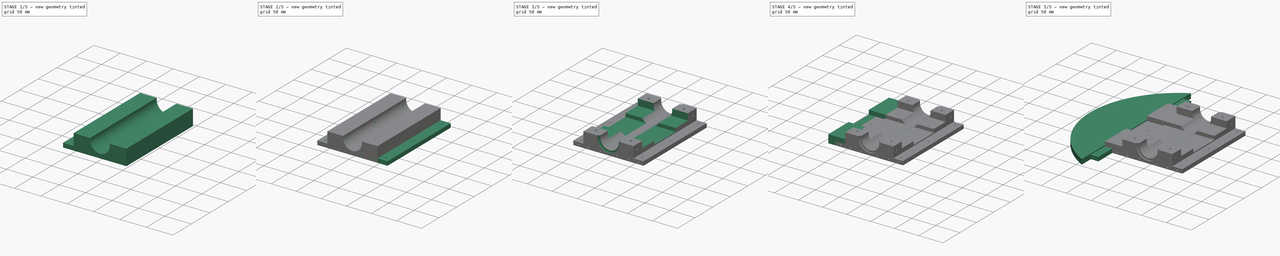
[diagram: build sequence overview — one tinted view per stage of 5, left to right]
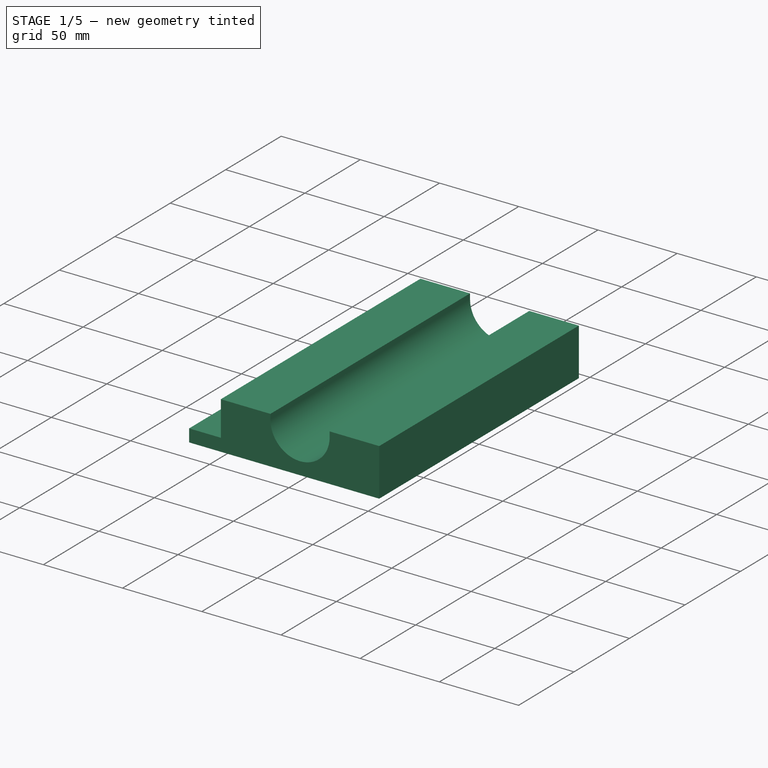
[diagram: stage 1 of 5 — iso view after this stage's code; geometry added in this stage tinted green]
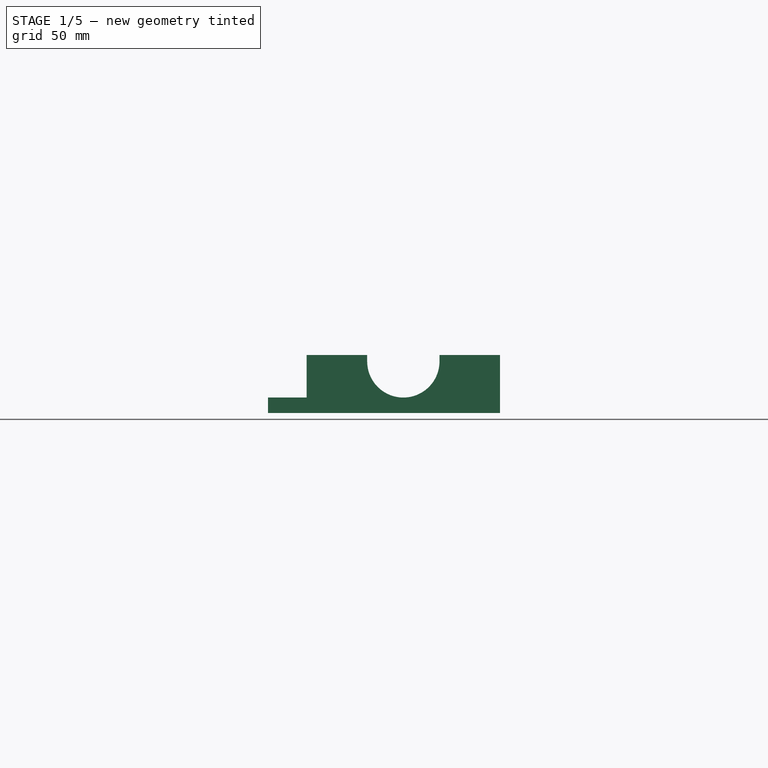
[diagram: stage 1 of 5 — front view after this stage's code; geometry added in this stage tinted green]
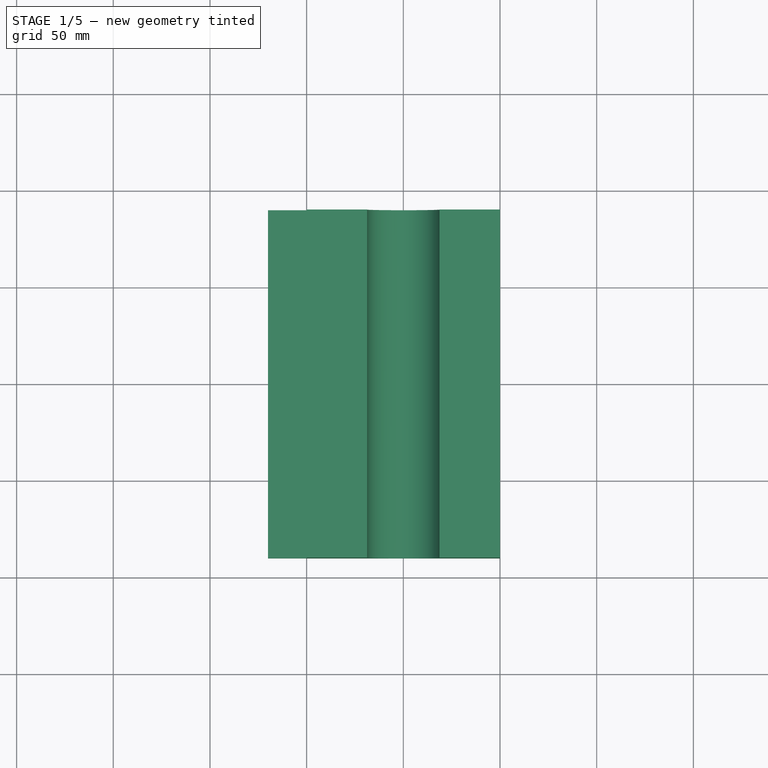
[diagram: stage 1 of 5 — top view after this stage's code; geometry added in this stage tinted green]
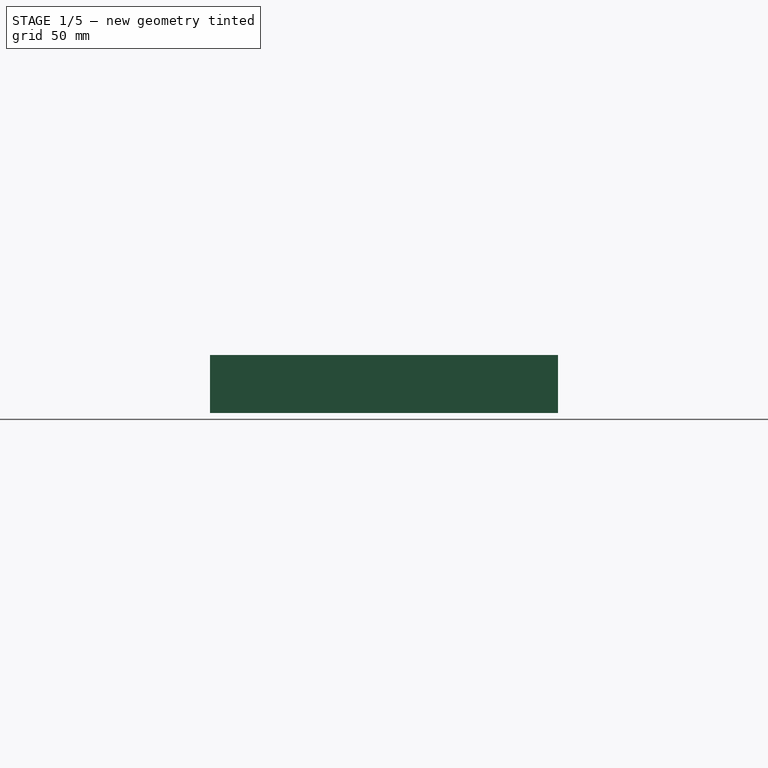
[diagram: stage 1 of 5 — right view after this stage's code; geometry added in this stage tinted green]
FCSTD DOCUMENT  (FreeCAD 0.16R)
Label: bumper
License: All rights reserved
LicenseURL: http://en.wikipedia.org/wiki/All_rights_reserved
objects: Sketcher::SketchObject×21, PartDesign::Pocket×11, PartDesign::Pad×10
note: 63 computed .brp shape members not serialized (recipe doc carries the construction recipe); baked Part::Feature solids carry a one-line shape summary decoded from their .brp

FEATURE [Sketcher::SketchObject] Sketch
  sketch-geometry (4):
    g0: LineSegment StartX=-50 StartY=90 StartZ=0 EndX=50 EndY=90 EndZ=0
    g1: LineSegment StartX=50 StartY=90 StartZ=0 EndX=50 EndY=-90 EndZ=0
    g2: LineSegment StartX=50 StartY=-90 StartZ=0 EndX=-50 EndY=-90 EndZ=0
    g3: LineSegment StartX=-50 StartY=-90 StartZ=0 EndX=-50 EndY=90 EndZ=0
  constraints (12):
    c: Coincident(g0,g1)
    c: Coincident(g1,g2)
    c: Coincident(g2,g3)
    c: Coincident(g3,g0)
    c: Horizontal(g0)
    c: Horizontal(g2)
    c: Vertical(g1)
    c: Vertical(g3)
    c: Symmetric(g0,g0,g-2)
    c: Symmetric(g0,g2,g-1)
    c: DistanceX(g0,g0) = 100
    c: DistanceY(g1,g1) = 180
FEATURE [PartDesign::Pad] Pad
  Length = 30
  Length2 = 100
  Sketch = -> Sketch
  Type = 0
FEATURE [Sketcher::SketchObject] Sketch001
  ExternalGeometry = -> [Pad]
  Placement = pos=(0,-90,0) rot=(1,0,0;1.5708rad)
  Support = -> Pad [Face3]
  sketch-geometry (3):
    g0: Circle CenterX=0 CenterY=26.7 CenterZ=0 NormalX=0 NormalY=0 NormalZ=1 Radius=18.7
    g1: GeomPoint [constr] X=0.043932 Y=30 Z=0
    g2: GeomPoint [constr] X=0 Y=8 Z=0
  constraints (6):
    c: PointOnObject(g0,g-2)
    c: Radius(g0) = 18.7
    c: PointOnObject(g1,g-3)
    c: PointOnObject(g2,g-2)
    c: PointOnObject(g2,g0)
    c: DistanceY(g2,g1) = 22
FEATURE [PartDesign::Pocket] Pocket
  Length = 5
  Sketch = -> Sketch001
  Type = 1
FEATURE [Sketcher::SketchObject] Sketch002
  ExternalGeometry = -> [Pocket]
  Placement = pos=(0,-90,0) rot=(1,0,0;1.5708rad)
  Support = -> Pocket [Face9]
  sketch-geometry (4):
    g0: LineSegment StartX=18.7 StartY=30 StartZ=0 EndX=-18.7 EndY=30 EndZ=0
    g1: LineSegment StartX=-18.7 StartY=30 StartZ=0 EndX=-18.7 EndY=26.4651 EndZ=0
    g2: LineSegment StartX=-18.7 StartY=26.4651 StartZ=0 EndX=18.7 EndY=26.4651 EndZ=0
    g3: LineSegment StartX=18.7 StartY=26.4651 StartZ=0 EndX=18.7 EndY=30 EndZ=0
  constraints (11):
    c: Coincident(g0,g1)
    c: Coincident(g1,g2)
    c: Coincident(g2,g3)
    c: Coincident(g3,g0)
    c: Horizontal(g0)
    c: Horizontal(g2)
    c: Vertical(g1)
    c: Vertical(g3)
    c: PointOnObject(g0,g-4)
    c: PointOnObject(g-6,g3)
    c: Symmetric(g0,g0,g-2)
FEATURE [PartDesign::Pocket] Pocket001
  Length = 5
  Sketch = -> Sketch002
  Type = 1
FEATURE [Sketcher::SketchObject] Sketch003
  ExternalGeometry = -> [Pocket001]
  Placement = pos=(-50,0,0) rot=(0.57735,-0.57735,-0.57735;2.0944rad)
  Support = -> Pocket001 [Face13]
  sketch-geometry (4):
    g0: LineSegment StartX=-90 StartY=8 StartZ=0 EndX=90 EndY=8 EndZ=0
    g1: LineSegment StartX=90 StartY=8 StartZ=0 EndX=90 EndY=0 EndZ=0
    g2: LineSegment StartX=90 StartY=0 StartZ=0 EndX=-90 EndY=0 EndZ=0
    g3: LineSegment StartX=-90 StartY=0 StartZ=0 EndX=-90 EndY=8 EndZ=0
  constraints (11):
    c: Coincident(g0,g1)
    c: Coincident(g1,g2)
    c: Coincident(g2,g3)
    c: Coincident(g3,g0)
    c: Horizontal(g0)
    c: Horizontal(g2)
    c: Vertical(g1)
    c: Vertical(g3)
    c: PointOnObject(g0,g-5)
    c: Coincident(g1,g-4)
    c: DistanceY(g2,g0) = 8
FEATURE [PartDesign::Pad] Pad001
  Length = 20
  Length2 = 100
  Sketch = -> Sketch003
  Type = 0
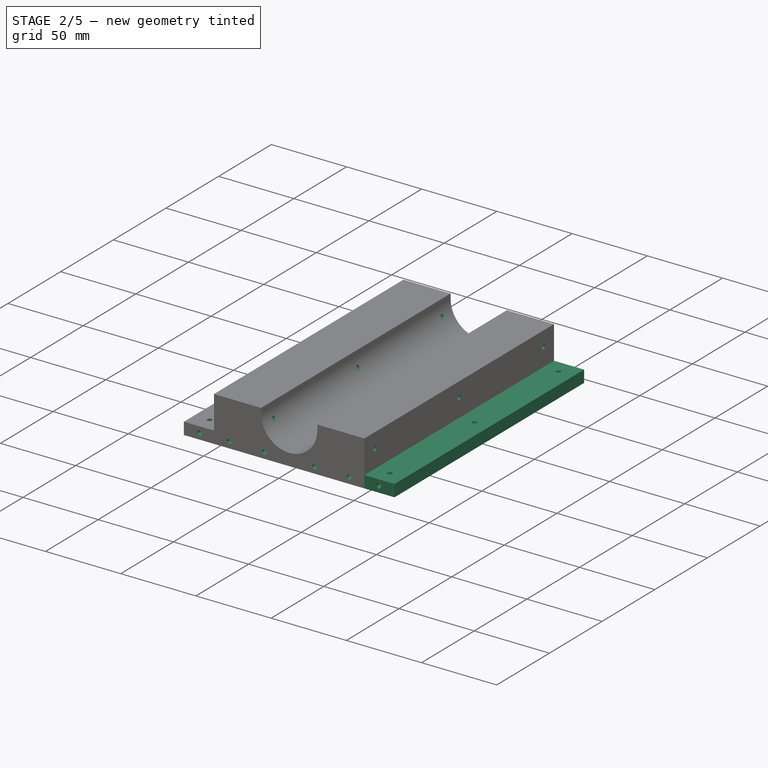
[diagram: stage 2 of 5 — iso view after this stage's code; geometry added in this stage tinted green]
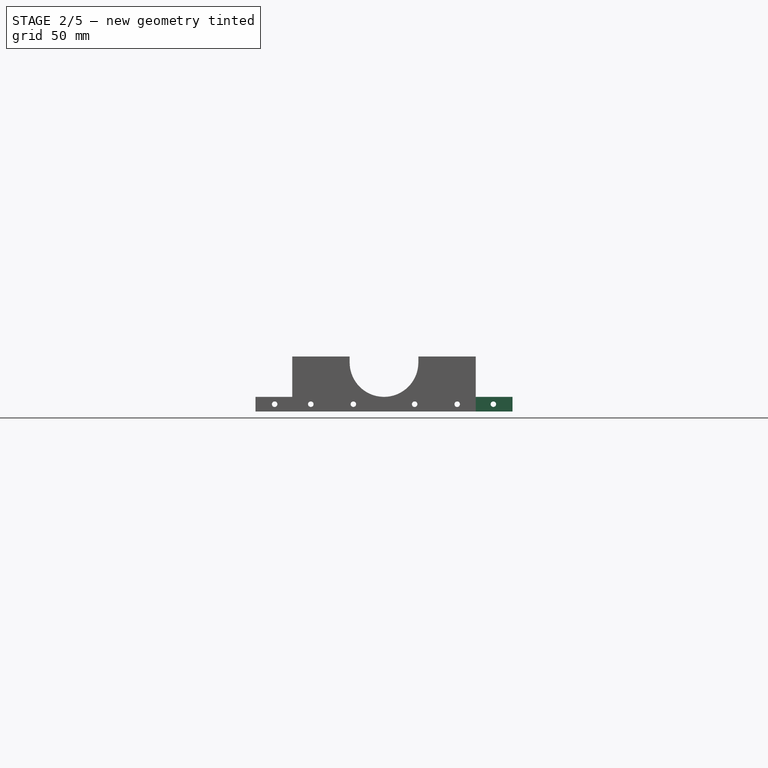
[diagram: stage 2 of 5 — front view after this stage's code; geometry added in this stage tinted green]
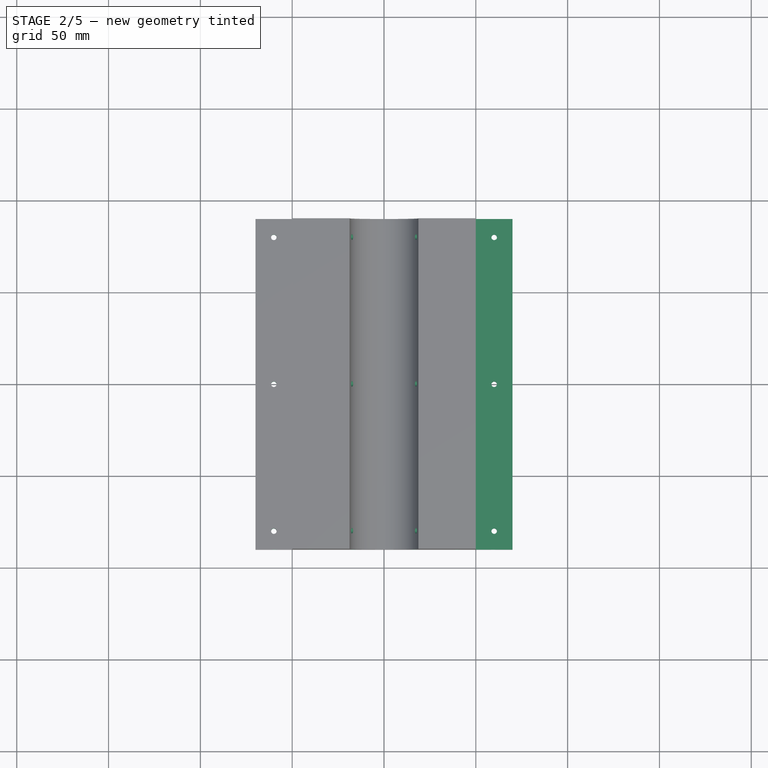
[diagram: stage 2 of 5 — top view after this stage's code; geometry added in this stage tinted green]
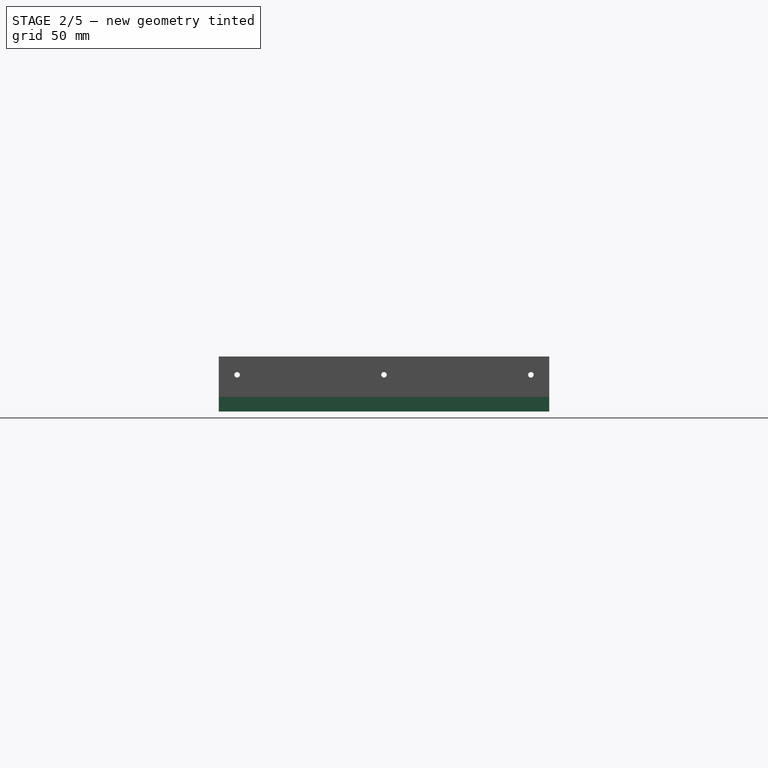
[diagram: stage 2 of 5 — right view after this stage's code; geometry added in this stage tinted green]
FEATURE [Sketcher::SketchObject] Sketch004
  ExternalGeometry = -> [Pad001]
  Placement = pos=(50,0,0) rot=(0.57735,0.57735,0.57735;2.0944rad)
  Support = -> Pad001 [Face1]
  sketch-geometry (4):
    g0: LineSegment StartX=-90 StartY=8 StartZ=0 EndX=90 EndY=8 EndZ=0
    g1: LineSegment StartX=90 StartY=8 StartZ=0 EndX=90 EndY=0 EndZ=0
    g2: LineSegment StartX=90 StartY=0 StartZ=0 EndX=-90 EndY=0 EndZ=0
    g3: LineSegment StartX=-90 StartY=0 StartZ=0 EndX=-90 EndY=8 EndZ=0
  constraints (11):
    c: Coincident(g0,g1)
    c: Coincident(g1,g2)
    c: Coincident(g2,g3)
    c: Coincident(g3,g0)
    c: Horizontal(g0)
    c: Horizontal(g2)
    c: Vertical(g1)
    c: Vertical(g3)
    c: PointOnObject(g0,g-3)
    c: Coincident(g1,g-5)
    c: DistanceY(g1,g0) = 8
FEATURE [PartDesign::Pad] Pad002
  Length = 20
  Length2 = 100
  Sketch = -> Sketch004
  Type = 0
FEATURE [Sketcher::SketchObject] Sketch005
  ExternalGeometry = -> [Pad002]
  Placement = pos=(0,0,8) rot=(0,0,1;0rad)
  Support = -> Pad002 [Face17]
  sketch-geometry (6):
    g0: Circle CenterX=-60 CenterY=80 CenterZ=0 NormalX=0 NormalY=0 NormalZ=1 Radius=1.5
    g1: Circle CenterX=60 CenterY=80 CenterZ=0 NormalX=0 NormalY=0 NormalZ=1 Radius=1.5
    g2: Circle CenterX=-60 CenterY=-80 CenterZ=0 NormalX=0 NormalY=0 NormalZ=1 Radius=1.5
    g3: Circle CenterX=60 CenterY=-80 CenterZ=0 NormalX=0 NormalY=0 NormalZ=1 Radius=1.5
    g4: Circle CenterX=60 CenterY=0 CenterZ=0 NormalX=0 NormalY=0 NormalZ=1 Radius=1.5
    g5: Circle CenterX=-60 CenterY=0 CenterZ=0 NormalX=0 NormalY=0 NormalZ=1 Radius=1.5
  constraints (18):
    c: PointOnObject(g4,g-1)
    c: PointOnObject(g5,g-1)
    c: Radius(g5) = 1.5
    c: Equal(g5,g0)
    c: Equal(g5,g1)
    c: Equal(g5,g4)
    c: Equal(g5,g3)
    c: Equal(g5,g2)
    c: DistanceX(g-6,g5) = 10
    c: DistanceX(g-7,g2) = 10
    c: DistanceX(g3,g-8) = 10
    c: DistanceX(g4,g-8) = 10
    c: DistanceX(g1,g-5) = 10
    c: DistanceX(g-6,g0) = 10
    c: DistanceY(g0,g-6) = 10
    c: DistanceY(g1,g-5) = 10
    c: DistanceY(g-8,g3) = 10
    c: DistanceY(g-7,g2) = 10
FEATURE [PartDesign::Pocket] Pocket002
  Length = 5
  Sketch = -> Sketch005
  Type = 1
FEATURE [Sketcher::SketchObject] Sketch006
  ExternalGeometry = -> [Pocket002]
  Placement = pos=(50,0,0) rot=(0.57735,0.57735,0.57735;2.0944rad)
  Support = -> Pocket002 [Face4]
  sketch-geometry (3):
    g0: Circle CenterX=-80 CenterY=20 CenterZ=0 NormalX=0 NormalY=0 NormalZ=1 Radius=1.5
    g1: Circle CenterX=0 CenterY=20 CenterZ=0 NormalX=0 NormalY=0 NormalZ=1 Radius=1.5
    g2: Circle CenterX=80 CenterY=20 CenterZ=0 NormalX=0 NormalY=0 NormalZ=1 Radius=1.5
  constraints (9):
    c: PointOnObject(g1,g-2)
    c: DistanceX(g2,g-6) = 10
    c: DistanceY(g2,g-6) = 10
    c: DistanceY(g1,g-6) = 10
    c: DistanceY(g0,g-4) = 10
    c: DistanceX(g-4,g0) = 10
    c: Radius(g0) = 1.5
    c: Radius(g1) = 1.5
    c: Radius(g2) = 1.5
FEATURE [PartDesign::Pocket] Pocket003
  Length = 5
  Sketch = -> Sketch006
  Type = 1
FEATURE [Sketcher::SketchObject] Sketch007
  Placement = pos=(0,90,0) rot=(0,0.707107,0.707107;3.14159rad)
  Support = -> Pocket003 [Face5]
  sketch-geometry (6):
    g0: Circle CenterX=-39.8613 CenterY=4 CenterZ=0 NormalX=0 NormalY=0 NormalZ=1 Radius=1.5
    g1: Circle CenterX=-16.6963 CenterY=4 CenterZ=0 NormalX=0 NormalY=0 NormalZ=1 Radius=1.5
    g2: Circle CenterX=16.6963 CenterY=4 CenterZ=0 NormalX=0 NormalY=0 NormalZ=1 Radius=1.5
    g3: Circle CenterX=39.8613 CenterY=4 CenterZ=0 NormalX=0 NormalY=0 NormalZ=1 Radius=1.5
    g4: Circle CenterX=59.5532 CenterY=4 CenterZ=0 NormalX=0 NormalY=0 NormalZ=1 Radius=1.5
    g5: Circle CenterX=-59.5532 CenterY=4 CenterZ=0 NormalX=0 NormalY=0 NormalZ=1 Radius=1.5
  constraints (15):
    c: DistanceY(g-1,g1) = 4
    c: DistanceY(g-1,g0) = 4
    c: DistanceY(g-1,g5) = 4
    c: DistanceY(g-1,g2) = 4
    c: DistanceY(g-1,g3) = 4
    c: DistanceY(g-1,g4) = 4
    c: Radius(g1) = 1.5
    c: Equal(g1,g0)
    c: Equal(g1,g5)
    c: Equal(g1,g2)
    c: Equal(g1,g3)
    c: Equal(g1,g4)
    c: Symmetric(g1,g2,g-2)
    c: Symmetric(g0,g3,g-2)
    c: Symmetric(g5,g4,g-2)
FEATURE [PartDesign::Pocket] Pocket004
  Length = 5
  Sketch = -> Sketch007
  Type = 1
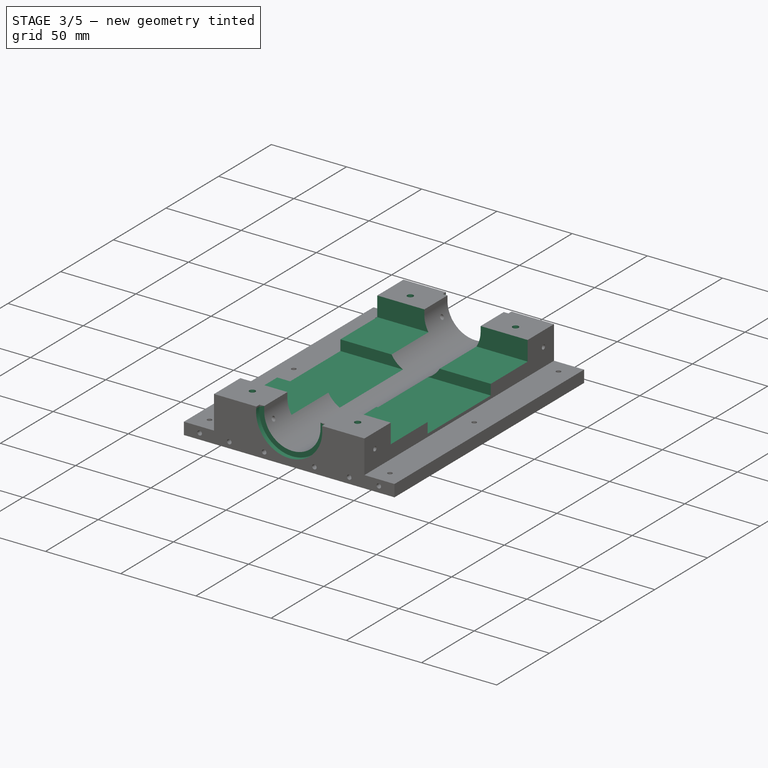
[diagram: stage 3 of 5 — iso view after this stage's code; geometry added in this stage tinted green]
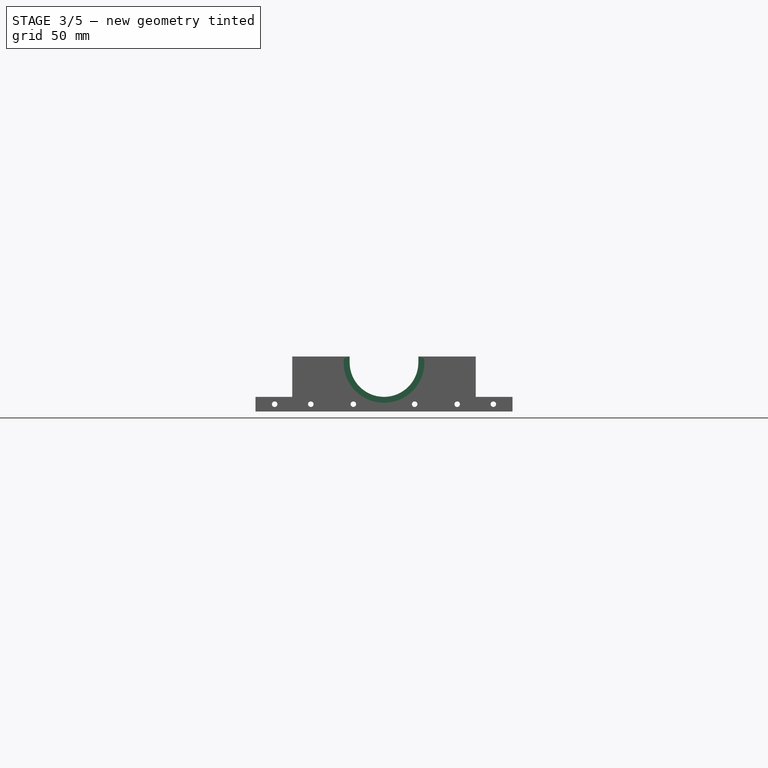
[diagram: stage 3 of 5 — front view after this stage's code; geometry added in this stage tinted green]
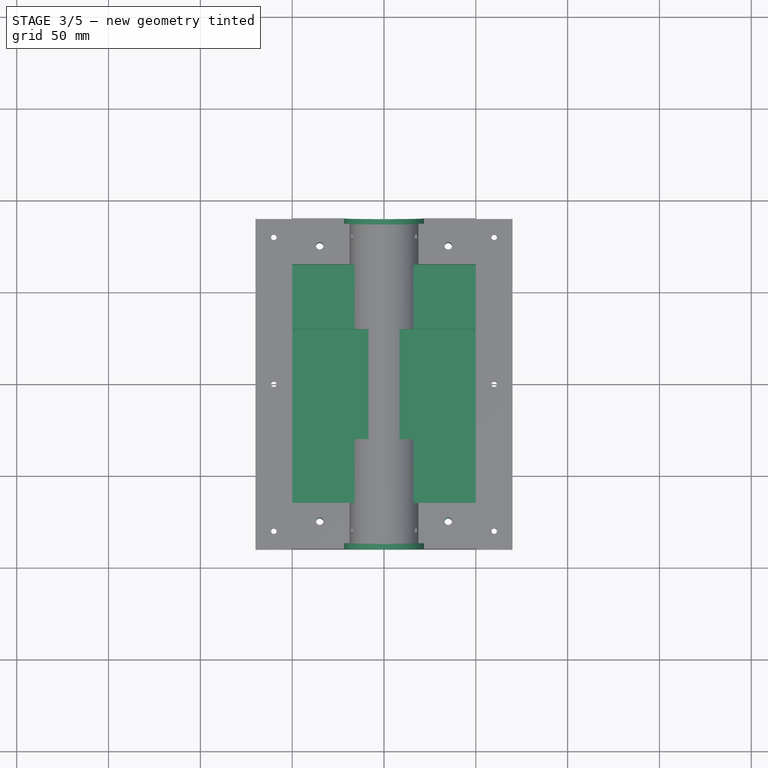
[diagram: stage 3 of 5 — top view after this stage's code; geometry added in this stage tinted green]
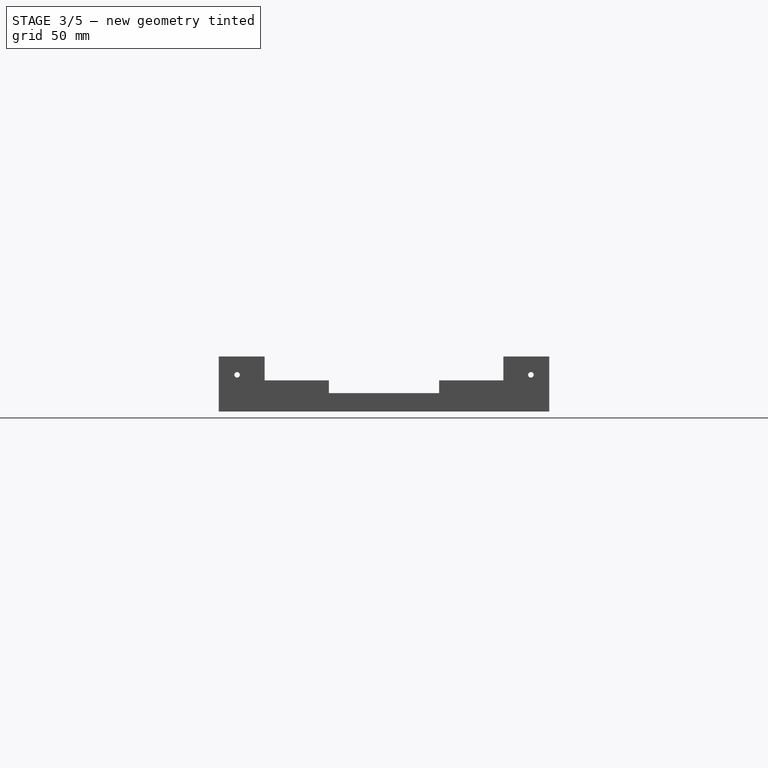
[diagram: stage 3 of 5 — right view after this stage's code; geometry added in this stage tinted green]
FEATURE [Sketcher::SketchObject] Sketch008
  ExternalGeometry = -> [Pocket004]
  Placement = pos=(-50,0,0) rot=(0.57735,-0.57735,-0.57735;2.0944rad)
  Support = -> Pocket004 [Face10]
  sketch-geometry (4):
    g0: LineSegment StartX=-65 StartY=30 StartZ=0 EndX=65 EndY=30 EndZ=0
    g1: LineSegment StartX=65 StartY=30 StartZ=0 EndX=65 EndY=17 EndZ=0
    g2: LineSegment StartX=65 StartY=17 StartZ=0 EndX=-65 EndY=17 EndZ=0
    g3: LineSegment StartX=-65 StartY=17 StartZ=0 EndX=-65 EndY=30 EndZ=0
  constraints (12):
    c: Coincident(g0,g1)
    c: Coincident(g1,g2)
    c: Coincident(g2,g3)
    c: Coincident(g3,g0)
    c: Horizontal(g0)
    c: Horizontal(g2)
    c: Vertical(g1)
    c: Vertical(g3)
    c: PointOnObject(g0,g-3)
    c: DistanceY(g3,g3) = 13
    c: DistanceX(g-4,g0) = 25
    c: Symmetric(g0,g0,g-2)
FEATURE [PartDesign::Pocket] Pocket005
  Length = 400
  Sketch = -> Sketch008
  Type = 0
FEATURE [Sketcher::SketchObject] Sketch009
  Placement = pos=(0,-90,0) rot=(1,0,0;1.5708rad)
  Support = -> Pocket005 [Face2]
  sketch-geometry (1):
    g0: Circle CenterX=0 CenterY=26.7826 CenterZ=0 NormalX=0 NormalY=0 NormalZ=1 Radius=22
  constraints (2):
    c: PointOnObject(g0,g-2)
    c: Radius(g0) = 22
FEATURE [PartDesign::Pocket] Pocket006
  Length = 3
  Sketch = -> Sketch009
  Type = 0
FEATURE [Sketcher::SketchObject] Sketch010
  Placement = pos=(0,90,0) rot=(0,0.707107,0.707107;3.14159rad)
  Support = -> Pocket006 [Face11]
  sketch-geometry (1):
    g0: Circle CenterX=0 CenterY=26.8506 CenterZ=0 NormalX=0 NormalY=0 NormalZ=1 Radius=22
  constraints (2):
    c: PointOnObject(g0,g-2)
    c: Radius(g0) = 22
FEATURE [PartDesign::Pocket] Pocket007
  Length = 3
  Sketch = -> Sketch010
  Type = 0
FEATURE [Sketcher::SketchObject] Sketch011
  ExternalGeometry = -> [Pocket007]
  Placement = pos=(50,0,0) rot=(0.57735,0.57735,0.57735;2.0944rad)
  Support = -> Pocket007 [Face2]
  sketch-geometry (4):
    g0: LineSegment StartX=-30 StartY=17 StartZ=0 EndX=30 EndY=17 EndZ=0
    g1: LineSegment StartX=30 StartY=17 StartZ=0 EndX=30 EndY=10 EndZ=0
    g2: LineSegment StartX=30 StartY=10 StartZ=0 EndX=-30 EndY=10 EndZ=0
    g3: LineSegment StartX=-30 StartY=10 StartZ=0 EndX=-30 EndY=17 EndZ=0
  constraints (12):
    c: Coincident(g0,g1)
    c: Coincident(g1,g2)
    c: Coincident(g2,g3)
    c: Coincident(g3,g0)
    c: Horizontal(g0)
    c: Horizontal(g2)
    c: Vertical(g1)
    c: Vertical(g3)
    c: PointOnObject(g0,g-3)
    c: Symmetric(g0,g0,g-2)
    c: DistanceX(g-3,g0) = 35
    c: DistanceY(g2,g0) = 7
FEATURE [PartDesign::Pocket] Pocket008
  Length = 120
  Sketch = -> Sketch011
  Type = 0
FEATURE [Sketcher::SketchObject] Sketch012
  Placement = pos=(0,0,30) rot=(0,0,1;0rad)
  Support = -> Pocket008 [Face23]
  sketch-geometry (4):
    g0: Circle CenterX=-35 CenterY=75 CenterZ=0 NormalX=0 NormalY=0 NormalZ=1 Radius=2
    g1: Circle CenterX=35 CenterY=75 CenterZ=0 NormalX=0 NormalY=0 NormalZ=1 Radius=2
    g2: Circle CenterX=-35 CenterY=-75 CenterZ=0 NormalX=0 NormalY=0 NormalZ=1 Radius=2
    g3: Circle CenterX=35 CenterY=-75 CenterZ=0 NormalX=0 NormalY=0 NormalZ=1 Radius=2
  constraints (9):
    c: Radius(g3) = 2
    c: Equal(g3,g1)
    c: Equal(g3,g0)
    c: Equal(g3,g2)
    c: Symmetric(g2,g0,g-1)
    c: Symmetric(g0,g1,g-2)
    c: Symmetric(g3,g2,g-2)
    c: DistanceY(g-1,g0) = 75
    c: DistanceX(g0,g-1) = 35
FEATURE [PartDesign::Pocket] Pocket009
  Length = 5
  Sketch = -> Sketch012
  Type = 1
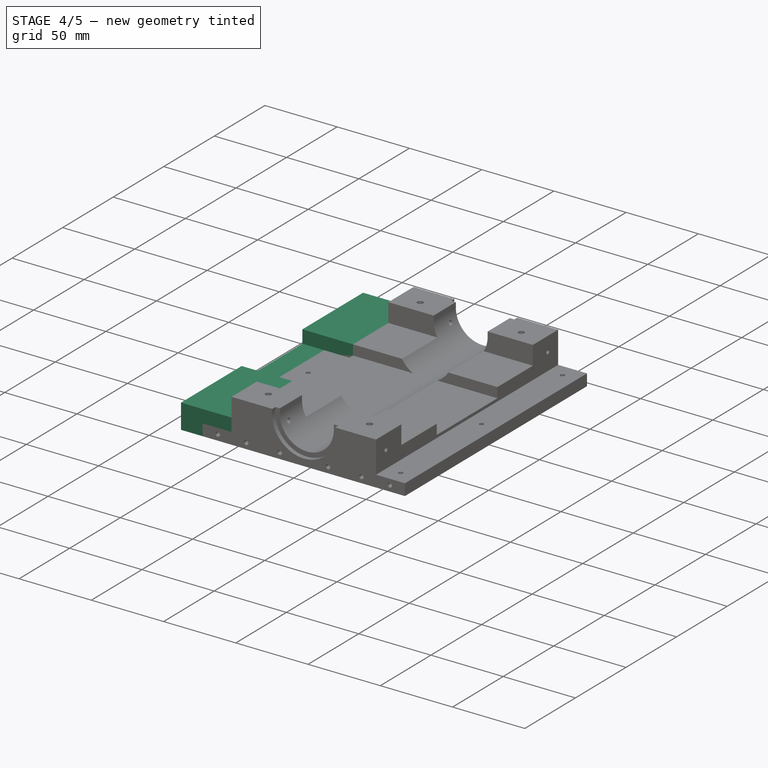
[diagram: stage 4 of 5 — iso view after this stage's code; geometry added in this stage tinted green]
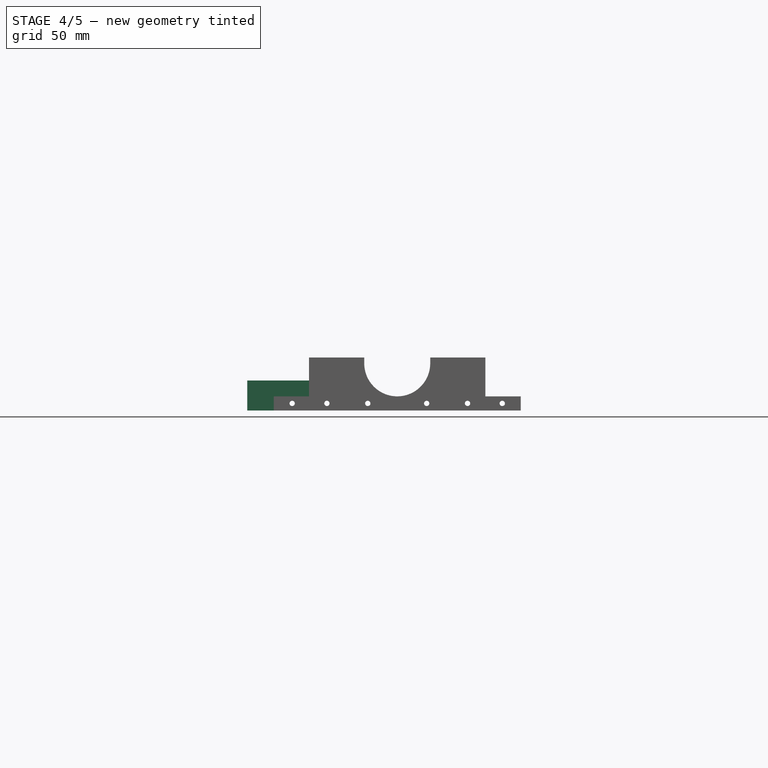
[diagram: stage 4 of 5 — front view after this stage's code; geometry added in this stage tinted green]
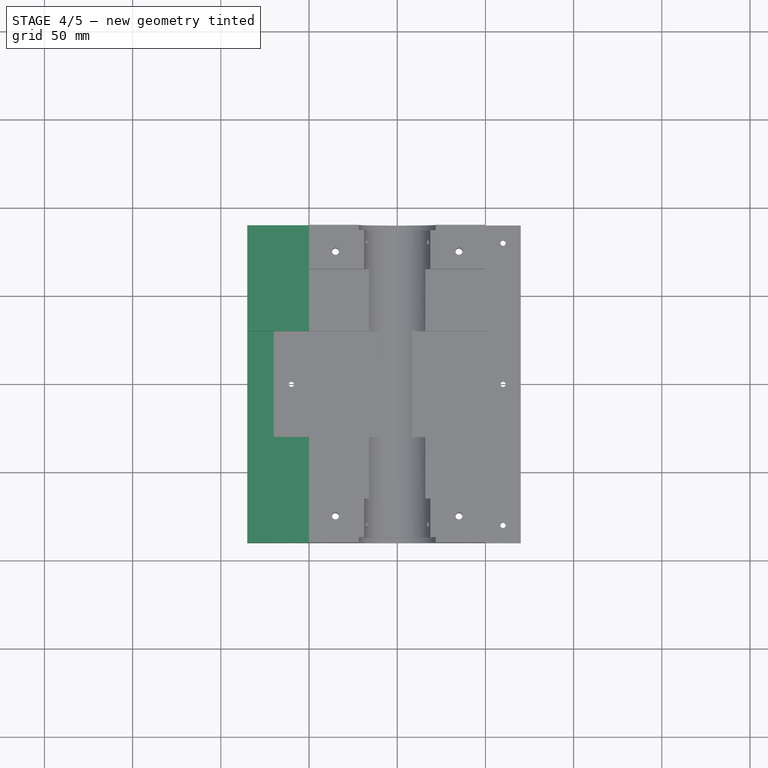
[diagram: stage 4 of 5 — top view after this stage's code; geometry added in this stage tinted green]
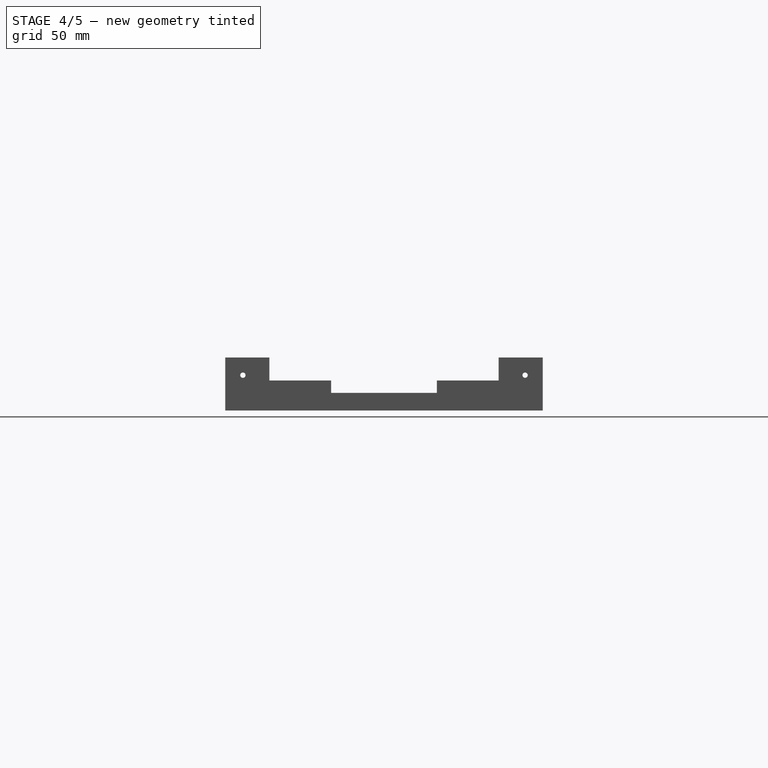
[diagram: stage 4 of 5 — right view after this stage's code; geometry added in this stage tinted green]
FEATURE [Sketcher::SketchObject] Sketch013
  ExternalGeometry = -> [Pocket009]
  Placement = pos=(-50,0,0) rot=(0.57735,-0.57735,-0.57735;2.0944rad)
  Support = -> Pocket009 [Face25]
  sketch-geometry (4):
    g0: LineSegment StartX=-90 StartY=17 StartZ=0 EndX=-30 EndY=17 EndZ=0
    g1: LineSegment StartX=-30 StartY=17 StartZ=0 EndX=-30 EndY=8 EndZ=0
    g2: LineSegment StartX=-30 StartY=8 StartZ=0 EndX=-90 EndY=8 EndZ=0
    g3: LineSegment StartX=-90 StartY=8 StartZ=0 EndX=-90 EndY=17 EndZ=0
  constraints (11):
    c: Coincident(g0,g1)
    c: Coincident(g1,g2)
    c: Coincident(g2,g3)
    c: Coincident(g3,g0)
    c: Horizontal(g0)
    c: Horizontal(g2)
    c: Vertical(g1)
    c: Vertical(g3)
    c: PointOnObject(g0,g-8)
    c: Coincident(g-4,g0)
    c: Coincident(g-9,g2)
FEATURE [PartDesign::Pad] Pad003
  Length = 35
  Length2 = 100
  Sketch = -> Sketch013
  Type = 0
FEATURE [Sketcher::SketchObject] Sketch014
  ExternalGeometry = -> [Pad003]
  Placement = pos=(-50,0,0) rot=(0.57735,-0.57735,-0.57735;2.0944rad)
  Support = -> Pad003 [Face25]
  sketch-geometry (4):
    g0: LineSegment StartX=30 StartY=17 StartZ=0 EndX=90 EndY=17 EndZ=0
    g1: LineSegment StartX=90 StartY=17 StartZ=0 EndX=90 EndY=8 EndZ=0
    g2: LineSegment StartX=90 StartY=8 StartZ=0 EndX=30 EndY=8 EndZ=0
    g3: LineSegment StartX=30 StartY=8 StartZ=0 EndX=30 EndY=17 EndZ=0
  constraints (10):
    c: Coincident(g0,g1)
    c: Coincident(g1,g2)
    c: Coincident(g2,g3)
    c: Coincident(g3,g0)
    c: Horizontal(g0)
    c: Horizontal(g2)
    c: Vertical(g1)
    c: Vertical(g3)
    c: Coincident(g0,g-5)
    c: Coincident(g1,g-6)
FEATURE [PartDesign::Pad] Pad004
  Length = 35
  Length2 = 100
  Sketch = -> Sketch014
  Type = 0
FEATURE [Sketcher::SketchObject] Sketch015
  ExternalGeometry = -> [Pad004]
  Placement = pos=(-85,0,0) rot=(0.57735,-0.57735,-0.57735;2.0944rad)
  Support = -> Pad004 [Face77]
  sketch-geometry (4):
    g0: LineSegment StartX=-90 StartY=17 StartZ=0 EndX=90 EndY=17 EndZ=0
    g1: LineSegment StartX=90 StartY=17 StartZ=0 EndX=90 EndY=0 EndZ=0
    g2: LineSegment StartX=90 StartY=0 StartZ=0 EndX=-90 EndY=0 EndZ=0
    g3: LineSegment StartX=-90 StartY=0 StartZ=0 EndX=-90 EndY=17 EndZ=0
  constraints (10):
    c: Coincident(g0,g1)
    c: Coincident(g1,g2)
    c: Coincident(g2,g3)
    c: Coincident(g3,g0)
    c: Horizontal(g0)
    c: Horizontal(g2)
    c: Vertical(g1)
    c: Vertical(g3)
    c: Coincident(g0,g-4)
    c: Coincident(g1,g-6)
FEATURE [PartDesign::Pad] Pad005
  Length = 15
  Length2 = 100
  Reversed = true
  Sketch = -> Sketch015
  Type = 0
FEATURE [Sketcher::SketchObject] Sketch016
  ExternalGeometry = -> [Pad005]
  Placement = pos=(-85,0,0) rot=(0.57735,-0.57735,-0.57735;2.0944rad)
  Support = -> Pad005 [Face84]
  sketch-geometry (4):
    g0: LineSegment StartX=-30 StartY=17 StartZ=0 EndX=30 EndY=17 EndZ=0
    g1: LineSegment StartX=30 StartY=17 StartZ=0 EndX=30 EndY=8 EndZ=0
    g2: LineSegment StartX=30 StartY=8 StartZ=0 EndX=-30 EndY=8 EndZ=0
    g3: LineSegment StartX=-30 StartY=8 StartZ=0 EndX=-30 EndY=17 EndZ=0
  constraints (10):
    c: Coincident(g0,g1)
    c: Coincident(g1,g2)
    c: Coincident(g2,g3)
    c: Coincident(g3,g0)
    c: Horizontal(g0)
    c: Horizontal(g2)
    c: Vertical(g1)
    c: Vertical(g3)
    c: Coincident(g0,g-4)
    c: Coincident(g1,g-5)
FEATURE [PartDesign::Pocket] Pocket010
  Length = 27
  Sketch = -> Sketch016
  Type = 0
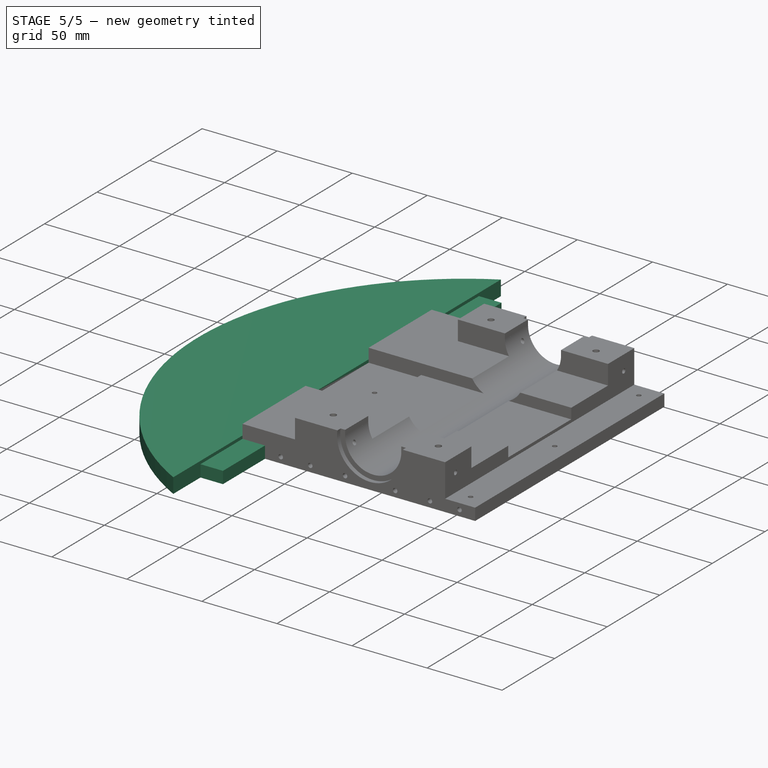
[diagram: stage 5 of 5 — iso view after this stage's code; geometry added in this stage tinted green]
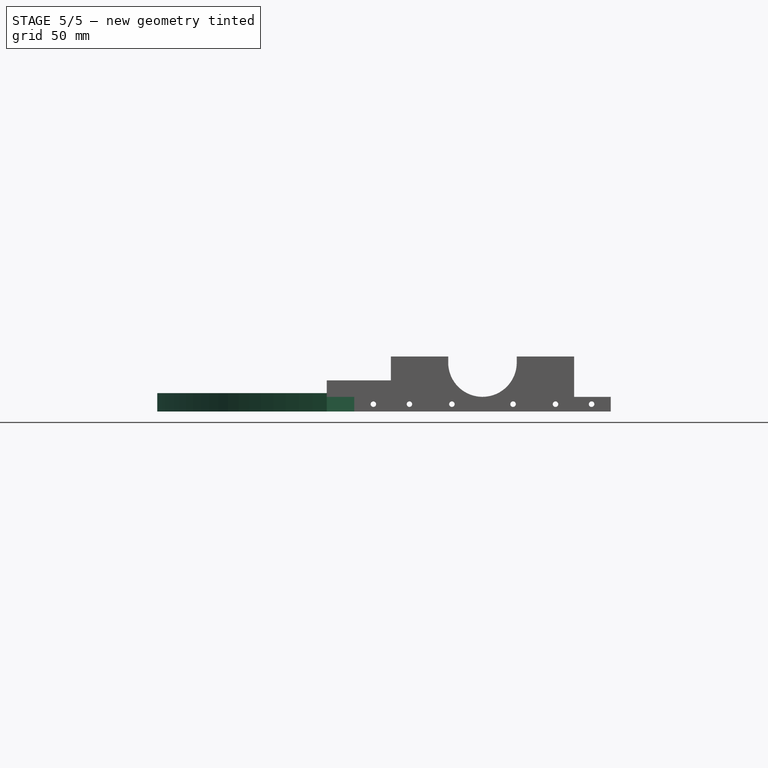
[diagram: stage 5 of 5 — front view after this stage's code; geometry added in this stage tinted green]
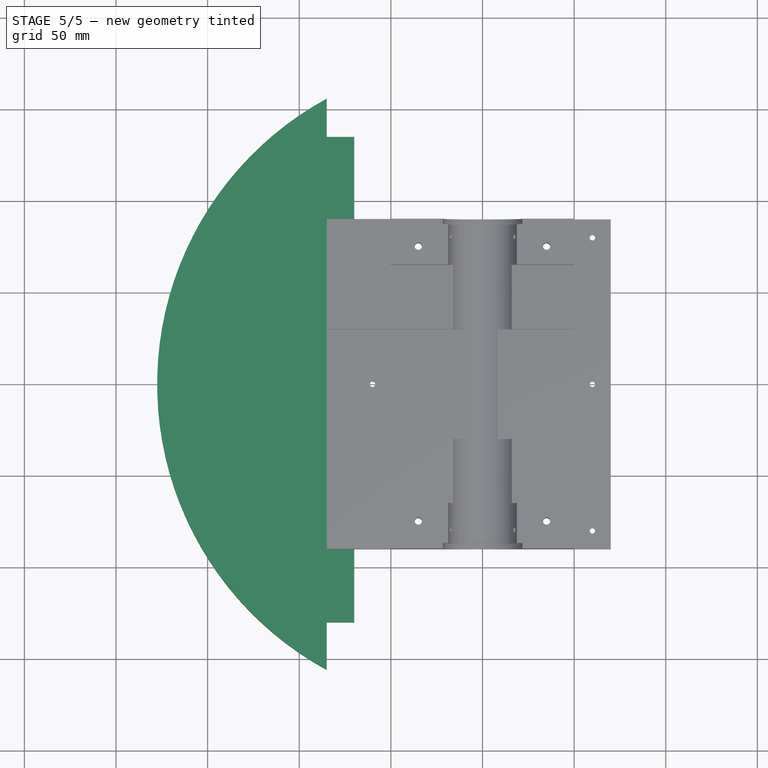
[diagram: stage 5 of 5 — top view after this stage's code; geometry added in this stage tinted green]
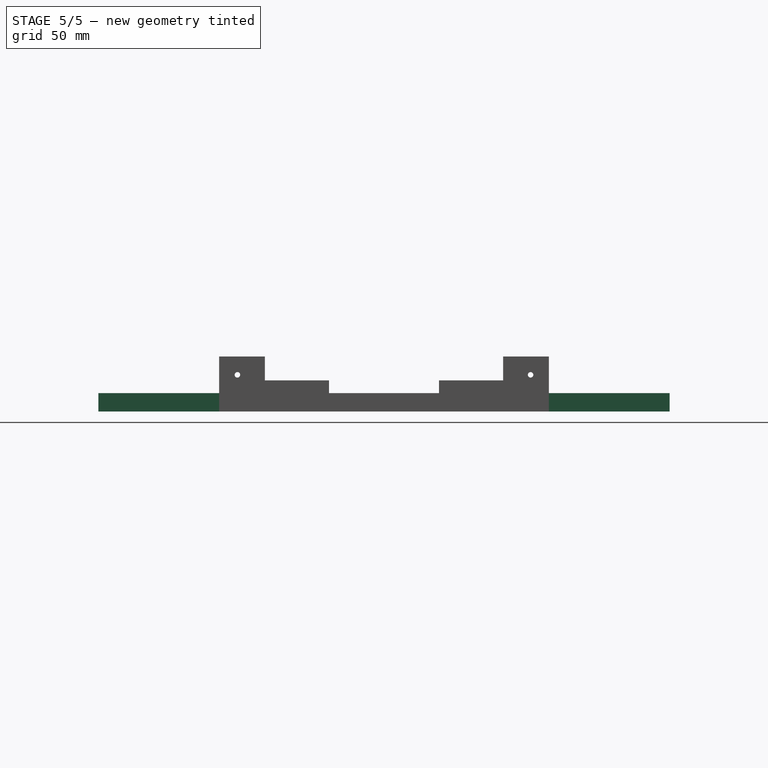
[diagram: stage 5 of 5 — right view after this stage's code; geometry added in this stage tinted green]
FEATURE [Sketcher::SketchObject] Sketch017
  ExternalGeometry = -> [Pocket010]
  Placement = pos=(0,-90,0) rot=(1,0,0;1.5708rad)
  Support = -> Pocket010 [Face68]
  sketch-geometry (4):
    g0: LineSegment StartX=-85 StartY=8 StartZ=0 EndX=-70 EndY=8 EndZ=0
    g1: LineSegment StartX=-70 StartY=8 StartZ=0 EndX=-70 EndY=0 EndZ=0
    g2: LineSegment StartX=-70 StartY=0 StartZ=0 EndX=-85 EndY=0 EndZ=0
    g3: LineSegment StartX=-85 StartY=0 StartZ=0 EndX=-85 EndY=8 EndZ=0
  constraints (10):
    c: Coincident(g0,g1)
    c: Coincident(g1,g2)
    c: Coincident(g2,g3)
    c: Coincident(g3,g0)
    c: Horizontal(g0)
    c: Horizontal(g2)
    c: Vertical(g1)
    c: Vertical(g3)
    c: Coincident(g0,g-4)
    c: Coincident(g1,g-6)
FEATURE [PartDesign::Pad] Pad006
  Length = 40
  Length2 = 100
  Sketch = -> Sketch017
  Type = 0
FEATURE [Sketcher::SketchObject] Sketch018
  ExternalGeometry = -> [Pad006]
  Placement = pos=(0,90,0) rot=(0,0.707107,0.707107;3.14159rad)
  Support = -> Pad006 [Face74]
  sketch-geometry (4):
    g0: LineSegment StartX=70 StartY=8 StartZ=0 EndX=85 EndY=8 EndZ=0
    g1: LineSegment StartX=85 StartY=8 StartZ=0 EndX=85 EndY=0 EndZ=0
    g2: LineSegment StartX=85 StartY=0 StartZ=0 EndX=70 EndY=0 EndZ=0
    g3: LineSegment StartX=70 StartY=0 StartZ=0 EndX=70 EndY=8 EndZ=0
  constraints (10):
    c: Coincident(g0,g1)
    c: Coincident(g1,g2)
    c: Coincident(g2,g3)
    c: Coincident(g3,g0)
    c: Horizontal(g0)
    c: Horizontal(g2)
    c: Vertical(g1)
    c: Vertical(g3)
    c: Coincident(g0,g-4)
    c: Coincident(g1,g-6)
FEATURE [PartDesign::Pad] Pad007
  Length = 45
  Length2 = 100
  Sketch = -> Sketch018
  Type = 0
FEATURE [Sketcher::SketchObject] Sketch019
  ExternalGeometry = -> [Pad007]
  Placement = pos=(-85,0,0) rot=(0.57735,-0.57735,-0.57735;2.0944rad)
  Support = -> Pad007 [Face103]
  sketch-geometry (4):
    g0: LineSegment StartX=-135 StartY=8 StartZ=0 EndX=130 EndY=8 EndZ=0
    g1: LineSegment StartX=130 StartY=8 StartZ=0 EndX=130 EndY=0 EndZ=0
    g2: LineSegment StartX=130 StartY=0 StartZ=0 EndX=-135 EndY=0 EndZ=0
    g3: LineSegment StartX=-135 StartY=0 StartZ=0 EndX=-135 EndY=8 EndZ=0
  constraints (10):
    c: Coincident(g0,g1)
    c: Coincident(g1,g2)
    c: Coincident(g2,g3)
    c: Coincident(g3,g0)
    c: Horizontal(g0)
    c: Horizontal(g2)
    c: Vertical(g1)
    c: Vertical(g3)
    c: Coincident(g0,g-3)
    c: Coincident(g1,g-4)
FEATURE [PartDesign::Pad] Pad008
  Length = 15
  Length2 = 100
  Sketch = -> Sketch019
  Type = 0
FEATURE [Sketcher::SketchObject] Sketch020
  ExternalGeometry = -> [Pad008]
  Placement = pos=(0,0,0) rot=(1,0,0;3.14159rad)
  Support = -> Pad008 [Face97]
  sketch-geometry (5):
    g0: ArcOfCircle CenterX=0 CenterY=0 CenterZ=0 NormalX=0 NormalY=0 NormalZ=1 Radius=177.54 StartAngle=2.07004 EndAngle=4.21314
    g1: LineSegment StartX=-85 StartY=155.87 StartZ=0 EndX=-85 EndY=-155.87 EndZ=0
    g2: GeomPoint [constr] X=-177.54 Y=0 Z=0
    g3: GeomPoint [constr] X=-85 Y=0 Z=0
    g4: LineSegment StartX=-177.54 StartY=0 StartZ=0 EndX=-85 EndY=0 EndZ=0
  constraints (13):
    c: Coincident(g0,g-1)
    c: Coincident(g1,g0)
    c: Coincident(g1,g0)
    c: Vertical(g1)
    c: Radius(g0) = 177.54
    c: PointOnObject(g-3,g1)
    c: PointOnObject(g2,g0)
    c: PointOnObject(g3,g1)
    c: Coincident(g4,g2)
    c: Coincident(g4,g3)
    c: Horizontal(g4)
    c: PointOnObject(g3,g-1)
    c: DistanceX(g4,g4) = 92.54
FEATURE [PartDesign::Pad] Pad009
  Length = 10
  Length2 = 100
  Reversed = true
  Sketch = -> Sketch020
  Type = 0
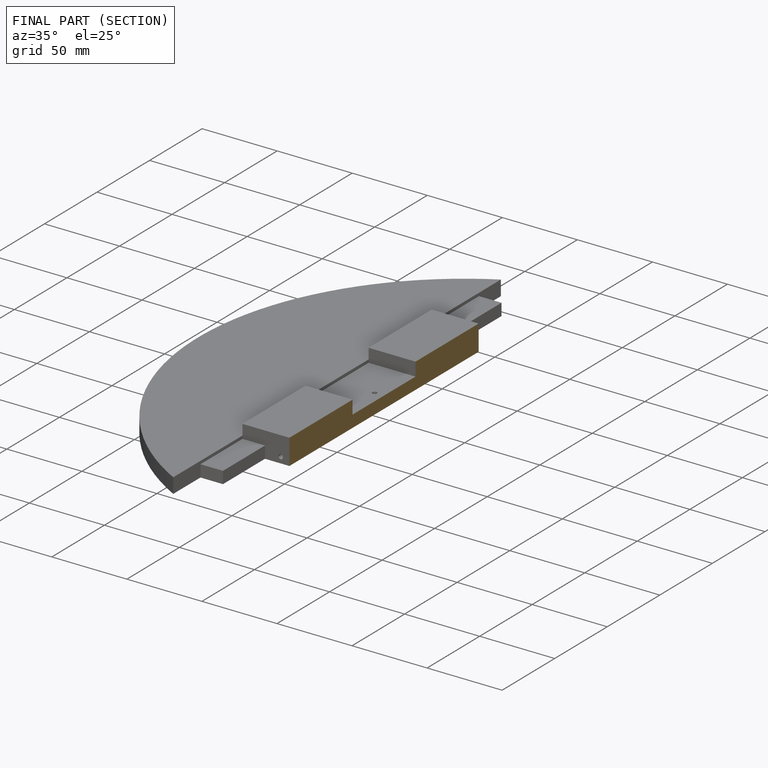
[diagram: finished part — half-section view (interior)]
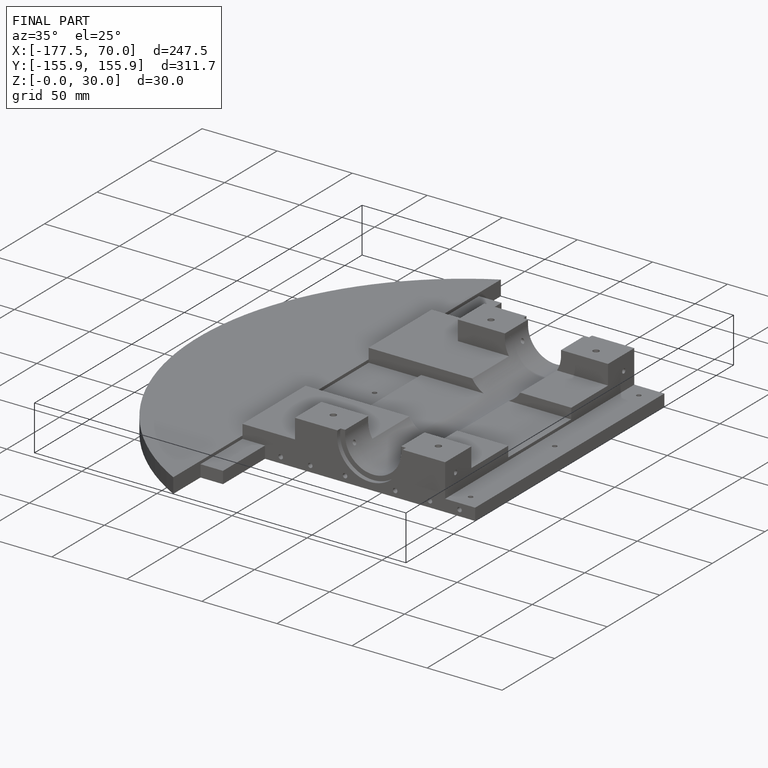
[diagram: finished part — iso view with bounding-box wireframe]
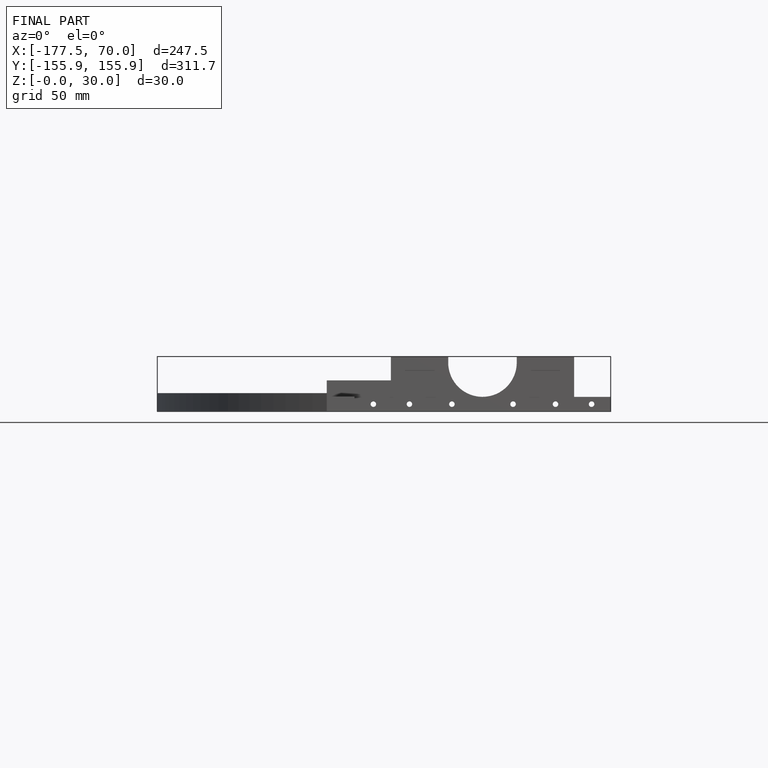
[diagram: finished part — front view with bounding-box wireframe]
